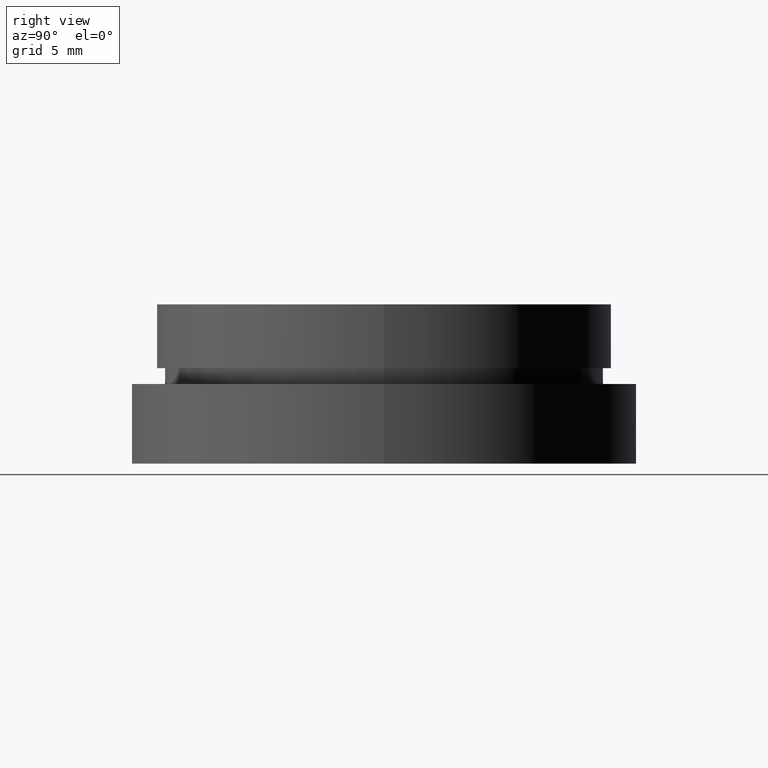
[diagram: clean part render]
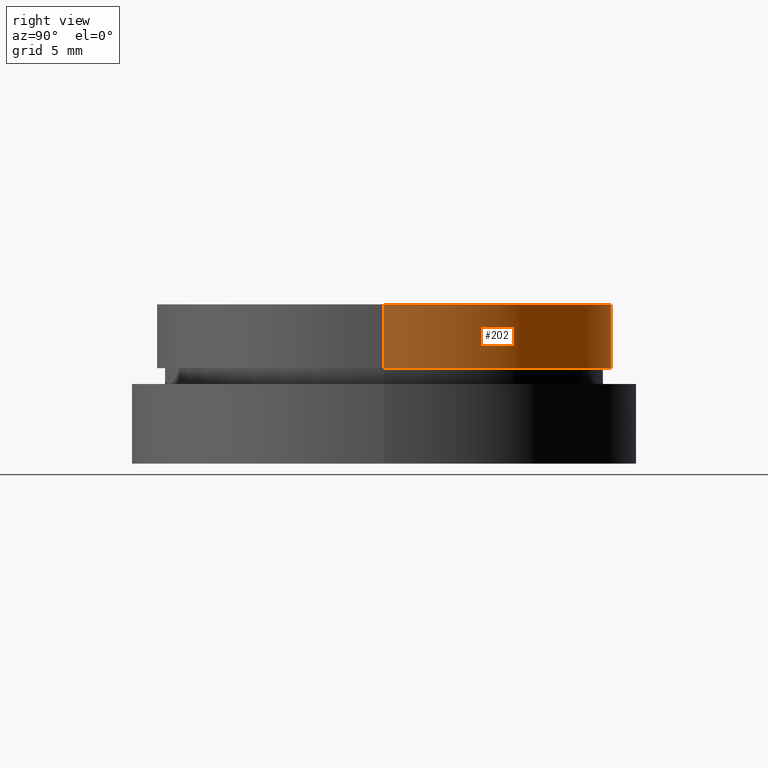
[diagram: same view with one face highlighted and labeled with its STEP entity id]
A machine part, right view. The second image highlights one B-rep face of the part: STEP entity #202.
In plain terms, the highlighted cylindrical surface (partial cylindrical patch) has radius 14.25 mm, axis along (-0, -0, -1).
Its self-contained STEP definition (entity closure, byte-faithful):
#10 = AXIS2_PLACEMENT_3D ( 'NONE', #161, #222, #376 ) ;
#11 = DIRECTION ( 'NONE',  ( -1.000000000000000000, 0.0000000000000000000, 0.0000000000000000000 ) ) ;
#22 = ORIENTED_EDGE ( 'NONE', *, *, #381, .T. ) ;
#28 = DIRECTION ( 'NONE',  ( -0.0000000000000000000, -0.0000000000000000000, -1.000000000000000000 ) ) ;
#46 = CARTESIAN_POINT ( 'NONE',  ( -14.25000000000000400, 0.0000000000000000000, -19.14057971014493000 ) ) ;
#84 = EDGE_CURVE ( 'NONE', #272, #145, #259, .T. ) ;
#88 = CARTESIAN_POINT ( 'NONE',  ( 0.0000000000000000000, 0.0000000000000000000, 0.0000000000000000000 ) ) ;
#103 = CARTESIAN_POINT ( 'NONE',  ( 14.25000000000000400, 1.745121688784978600E-015, 0.0000000000000000000 ) ) ;
#109 = VERTEX_POINT ( 'NONE', #139 ) ;
#111 = DIRECTION ( 'NONE',  ( -0.0000000000000000000, -0.0000000000000000000, -1.000000000000000000 ) ) ;
#113 = CARTESIAN_POINT ( 'NONE',  ( 14.25000000000000400, 1.745121688784978600E-015, -4.000000000000000000 ) ) ;
#116 = FACE_OUTER_BOUND ( 'NONE', #420, .T. ) ;
#139 = CARTESIAN_POINT ( 'NONE',  ( -14.25000000000000400, 0.0000000000000000000, 0.0000000000000000000 ) ) ;
#144 = EDGE_CURVE ( 'NONE', #109, #287, #388, .T. ) ;
#145 = VERTEX_POINT ( 'NONE', #113 ) ;
#161 = CARTESIAN_POINT ( 'NONE',  ( 0.0000000000000000000, 0.0000000000000000000, -4.000000000000000000 ) ) ;
#198 = ORIENTED_EDGE ( 'NONE', *, *, #255, .F. ) ;
#202 = ADVANCED_FACE ( 'NONE', ( #116 ), #270, .T. ) ;
#216 = AXIS2_PLACEMENT_3D ( 'NONE', #88, #279, #11 ) ;
#222 = DIRECTION ( 'NONE',  ( -0.0000000000000000000, -0.0000000000000000000, -1.000000000000000000 ) ) ;
#255 = EDGE_CURVE ( 'NONE', #287, #145, #257, .T. ) ;
#257 = CIRCLE ( 'NONE', #10, 14.25000000000000400 ) ;
#259 = LINE ( 'NONE', #366, #308 ) ;
#268 = CIRCLE ( 'NONE', #216, 14.25000000000000400 ) ;
#270 = CYLINDRICAL_SURFACE ( 'NONE', #369, 14.25000000000000400 ) ;
#272 = VERTEX_POINT ( 'NONE', #103 ) ;
#279 = DIRECTION ( 'NONE',  ( -0.0000000000000000000, -0.0000000000000000000, -1.000000000000000000 ) ) ;
#280 = ORIENTED_EDGE ( 'NONE', *, *, #144, .F. ) ;
#287 = VERTEX_POINT ( 'NONE', #368 ) ;
#303 = DIRECTION ( 'NONE',  ( -0.0000000000000000000, -0.0000000000000000000, -1.000000000000000000 ) ) ;
#308 = VECTOR ( 'NONE', #303, 1000.000000000000000 ) ;
#355 = CARTESIAN_POINT ( 'NONE',  ( 0.0000000000000000000, 0.0000000000000000000, -19.14057971014493000 ) ) ;
#357 = DIRECTION ( 'NONE',  ( -1.000000000000000000, 0.0000000000000000000, 0.0000000000000000000 ) ) ;
#366 = CARTESIAN_POINT ( 'NONE',  ( 14.25000000000000400, 1.745121688784978600E-015, -19.14057971014493000 ) ) ;
#367 = ORIENTED_EDGE ( 'NONE', *, *, #84, .T. ) ;
#368 = CARTESIAN_POINT ( 'NONE',  ( -14.25000000000000400, 0.0000000000000000000, -4.000000000000000000 ) ) ;
#369 = AXIS2_PLACEMENT_3D ( 'NONE', #355, #111, #357 ) ;
#376 = DIRECTION ( 'NONE',  ( -1.000000000000000000, 0.0000000000000000000, 0.0000000000000000000 ) ) ;
#381 = EDGE_CURVE ( 'NONE', #109, #272, #268, .T. ) ;
#388 = LINE ( 'NONE', #46, #428 ) ;
#420 = EDGE_LOOP ( 'NONE', ( #22, #367, #198, #280 ) ) ;
#428 = VECTOR ( 'NONE', #28, 1000.000000000000000 ) ;